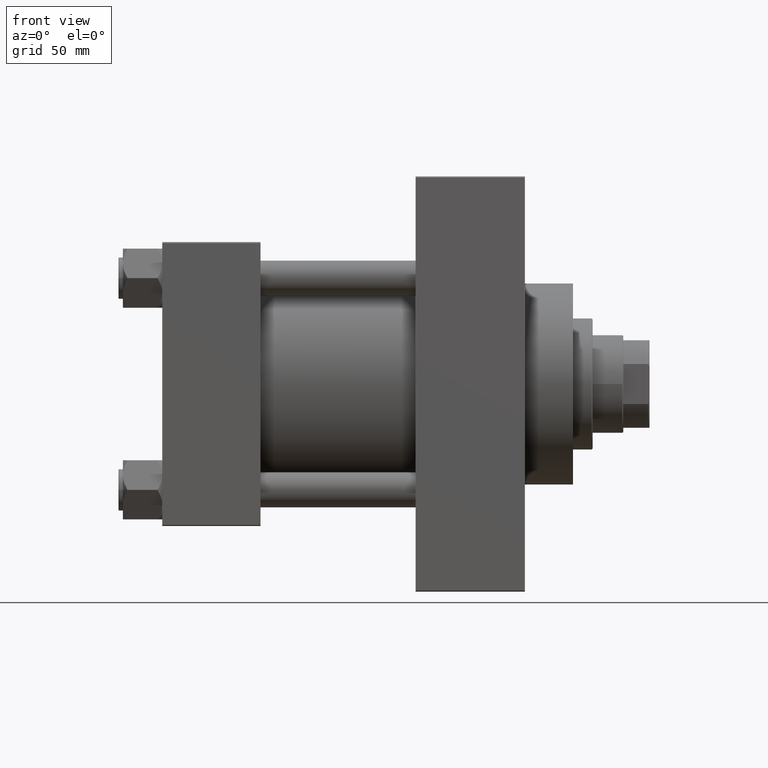
[diagram: clean part render]
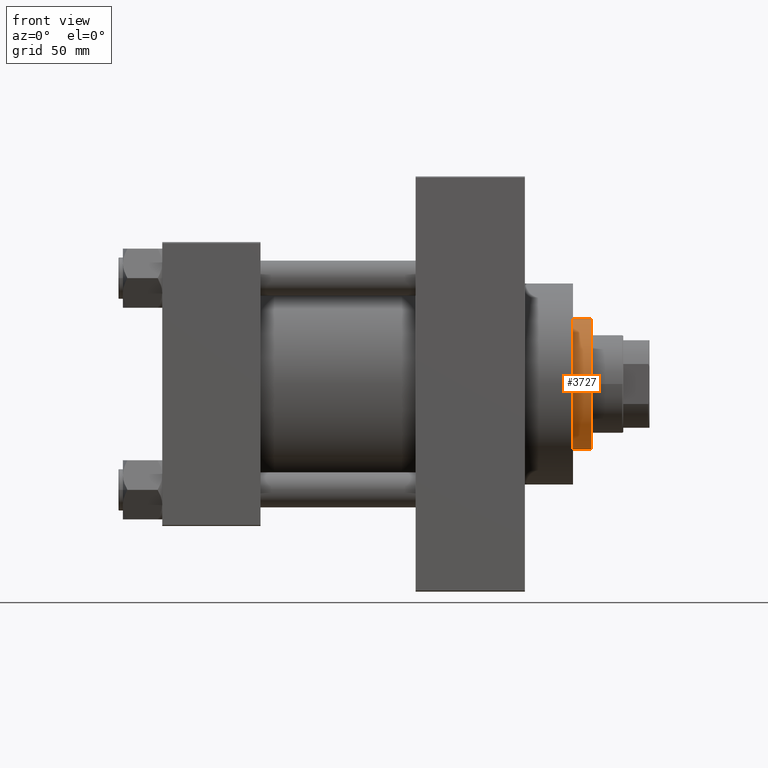
[diagram: same view with one face highlighted and labeled with its STEP entity id]
A machine part, front view. The second image highlights one B-rep face of the part: STEP entity #3727.
In plain terms, the highlighted cylindrical surface (partial cylindrical patch) has radius 30 mm, axis along (-1, 0, 0).
Its self-contained STEP definition (entity closure, byte-faithful):
#1632 = VERTEX_POINT ( 'NONE', #16640 ) ;
#2521 = CARTESIAN_POINT ( 'NONE',  ( 30.00000000000000000, 3.673940397442059178E-15, 52.25999999999999801 ) ) ;
#2594 = CYLINDRICAL_SURFACE ( 'NONE', #41230, 30.00000000000000000 ) ;
#3683 = EDGE_LOOP ( 'NONE', ( #24266, #9047, #28449, #46220 ) ) ;
#3727 = ADVANCED_FACE ( 'NONE', ( #6207 ), #2594, .T. ) ;
#6207 = FACE_OUTER_BOUND ( 'NONE', #3683, .T. ) ;
#6992 = CARTESIAN_POINT ( 'NONE',  ( 0.000000000000000000, 0.000000000000000000, 43.25999999999999801 ) ) ;
#7323 = CARTESIAN_POINT ( 'NONE',  ( 30.00000000000000000, 3.673940397442059178E-15, 51.75999999999999091 ) ) ;
#7376 = CARTESIAN_POINT ( 'NONE',  ( 30.00000000000000000, 3.673940397442059178E-15, 43.25999999999999801 ) ) ;
#8139 = VECTOR ( 'NONE', #30115, 1000.000000000000000 ) ;
#8699 = DIRECTION ( 'NONE',  ( 0.000000000000000000, 0.000000000000000000, -1.000000000000000000 ) ) ;
#9047 = ORIENTED_EDGE ( 'NONE', *, *, #38700, .T. ) ;
#9673 = DIRECTION ( 'NONE',  ( 0.000000000000000000, 0.000000000000000000, 1.000000000000000000 ) ) ;
#12794 = DIRECTION ( 'NONE',  ( 1.000000000000000000, 0.000000000000000000, 0.000000000000000000 ) ) ;
#13134 = LINE ( 'NONE', #2521, #27544 ) ;
#15742 = CIRCLE ( 'NONE', #28848, 30.00000000000000000 ) ;
#16591 = DIRECTION ( 'NONE',  ( -1.000000000000000000, 0.000000000000000000, 0.000000000000000000 ) ) ;
#16640 = CARTESIAN_POINT ( 'NONE',  ( -30.00000000000000000, 0.000000000000000000, 51.75999999999999091 ) ) ;
#17223 = EDGE_CURVE ( 'NONE', #1632, #18212, #15742, .T. ) ;
#18212 = VERTEX_POINT ( 'NONE', #7323 ) ;
#19747 = CIRCLE ( 'NONE', #25141, 30.00000000000000000 ) ;
#19804 = CARTESIAN_POINT ( 'NONE',  ( 0.000000000000000000, 0.000000000000000000, 51.75999999999999091 ) ) ;
#19880 = EDGE_CURVE ( 'NONE', #1632, #21940, #29630, .T. ) ;
#21471 = DIRECTION ( 'NONE',  ( 1.000000000000000000, 0.000000000000000000, 0.000000000000000000 ) ) ;
#21940 = VERTEX_POINT ( 'NONE', #32476 ) ;
#24266 = ORIENTED_EDGE ( 'NONE', *, *, #17223, .T. ) ;
#25141 = AXIS2_PLACEMENT_3D ( 'NONE', #6992, #9673, #21471 ) ;
#26986 = CARTESIAN_POINT ( 'NONE',  ( -30.00000000000000000, 0.000000000000000000, 52.25999999999999801 ) ) ;
#27544 = VECTOR ( 'NONE', #46637, 1000.000000000000000 ) ;
#28449 = ORIENTED_EDGE ( 'NONE', *, *, #39522, .T. ) ;
#28848 = AXIS2_PLACEMENT_3D ( 'NONE', #19804, #8699, #12794 ) ;
#29630 = LINE ( 'NONE', #26986, #8139 ) ;
#30115 = DIRECTION ( 'NONE',  ( -0.000000000000000000, -0.000000000000000000, -1.000000000000000000 ) ) ;
#31059 = CARTESIAN_POINT ( 'NONE',  ( 0.000000000000000000, 0.000000000000000000, 52.25999999999999801 ) ) ;
#32476 = CARTESIAN_POINT ( 'NONE',  ( -30.00000000000000000, 0.000000000000000000, 43.25999999999999801 ) ) ;
#38700 = EDGE_CURVE ( 'NONE', #18212, #42557, #13134, .T. ) ;
#39522 = EDGE_CURVE ( 'NONE', #42557, #21940, #19747, .T. ) ;
#41230 = AXIS2_PLACEMENT_3D ( 'NONE', #31059, #45773, #16591 ) ;
#42557 = VERTEX_POINT ( 'NONE', #7376 ) ;
#45773 = DIRECTION ( 'NONE',  ( -0.000000000000000000, -0.000000000000000000, -1.000000000000000000 ) ) ;
#46220 = ORIENTED_EDGE ( 'NONE', *, *, #19880, .F. ) ;
#46637 = DIRECTION ( 'NONE',  ( -0.000000000000000000, -0.000000000000000000, -1.000000000000000000 ) ) ;